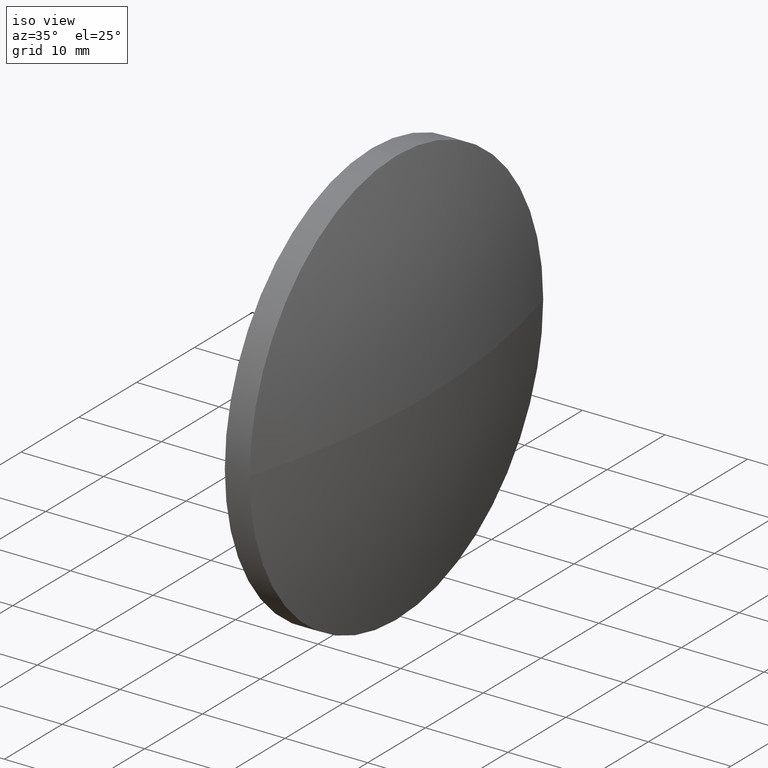
[diagram: clean part render]
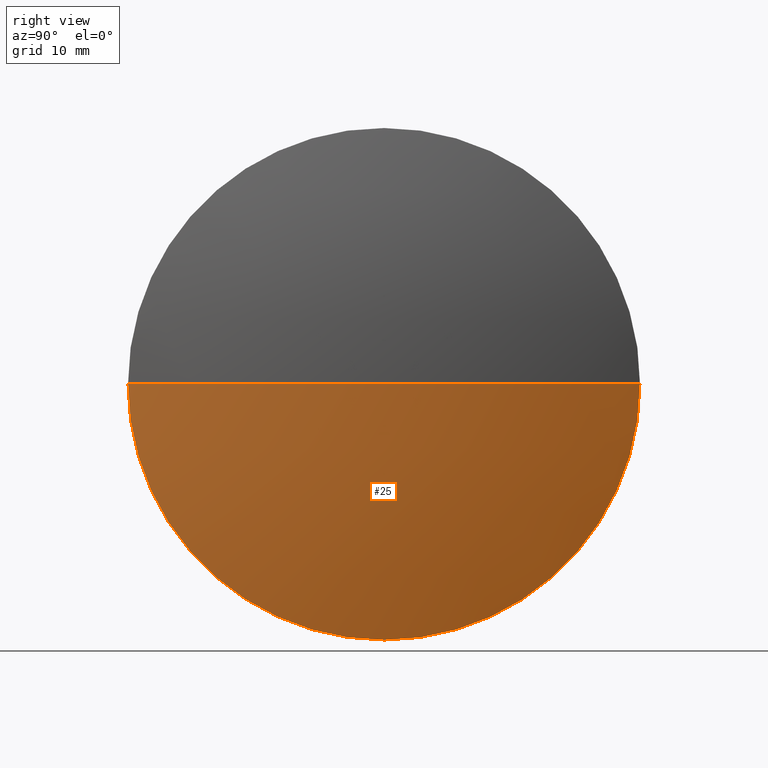
[diagram: tour spotlight — one face highlighted and labeled with its STEP entity id]
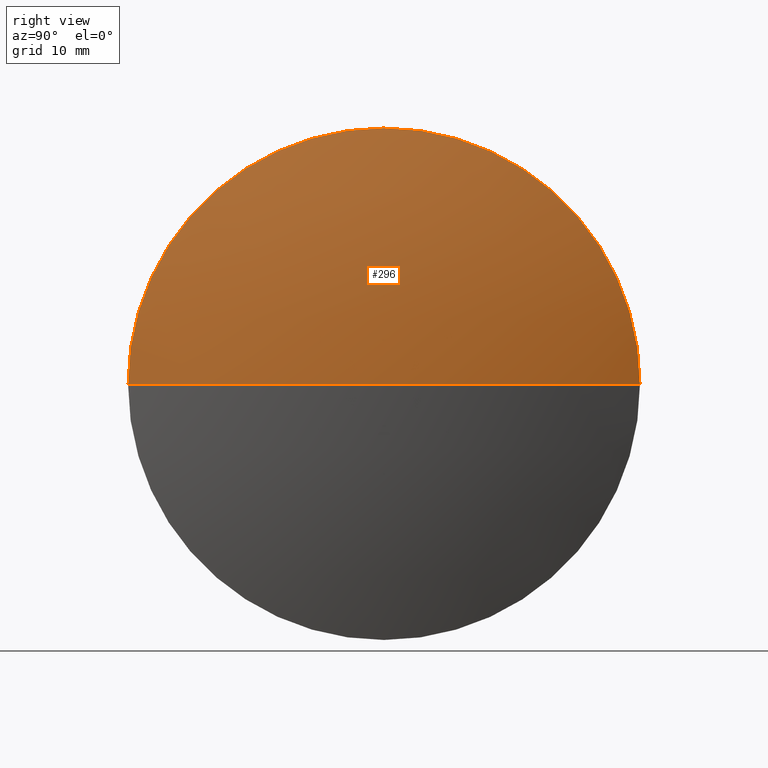
[diagram: tour spotlight — one face highlighted and labeled with its STEP entity id]
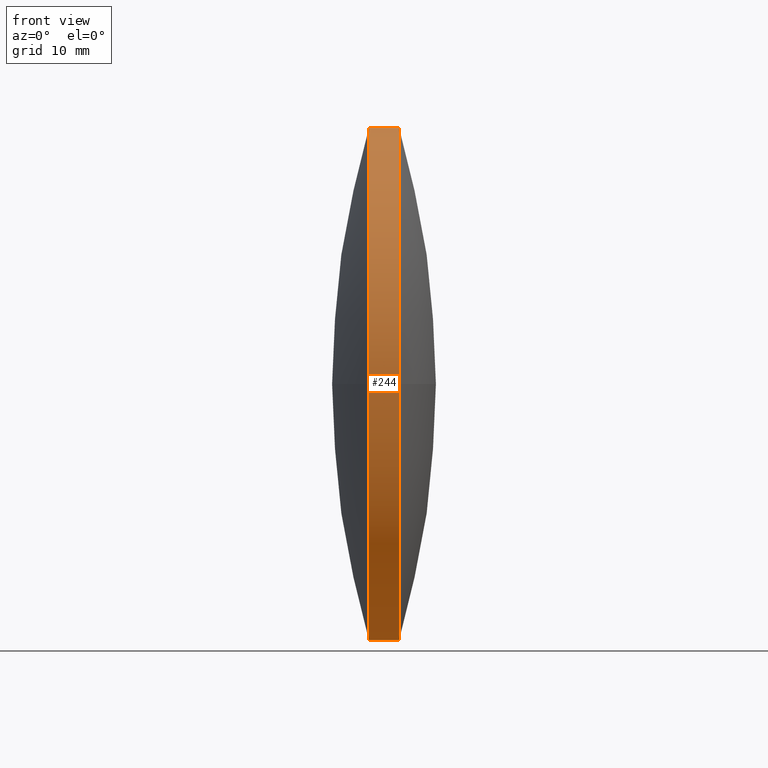
[diagram: tour spotlight — one face highlighted and labeled with its STEP entity id]
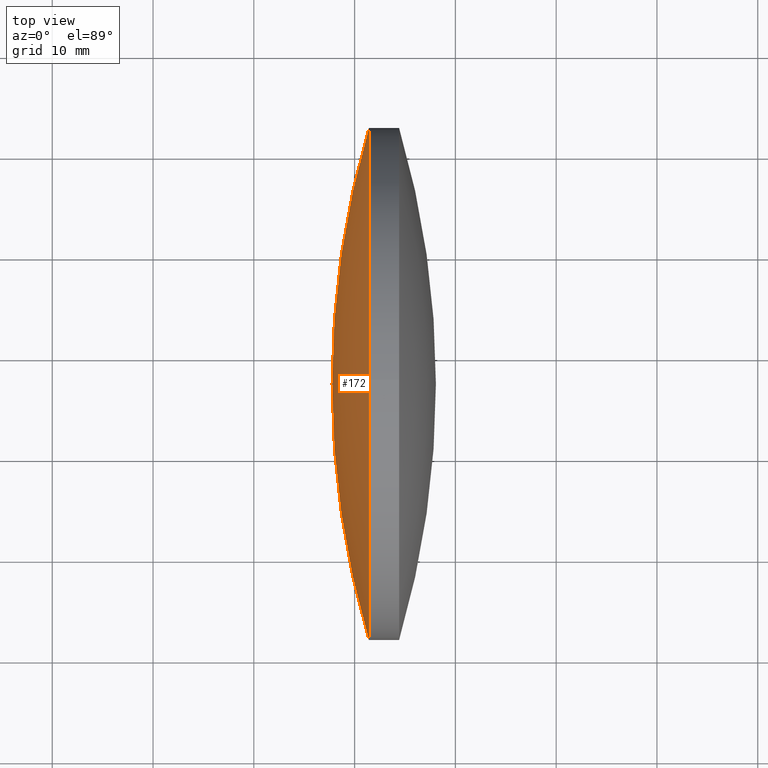
[diagram: tour spotlight — one face highlighted and labeled with its STEP entity id]
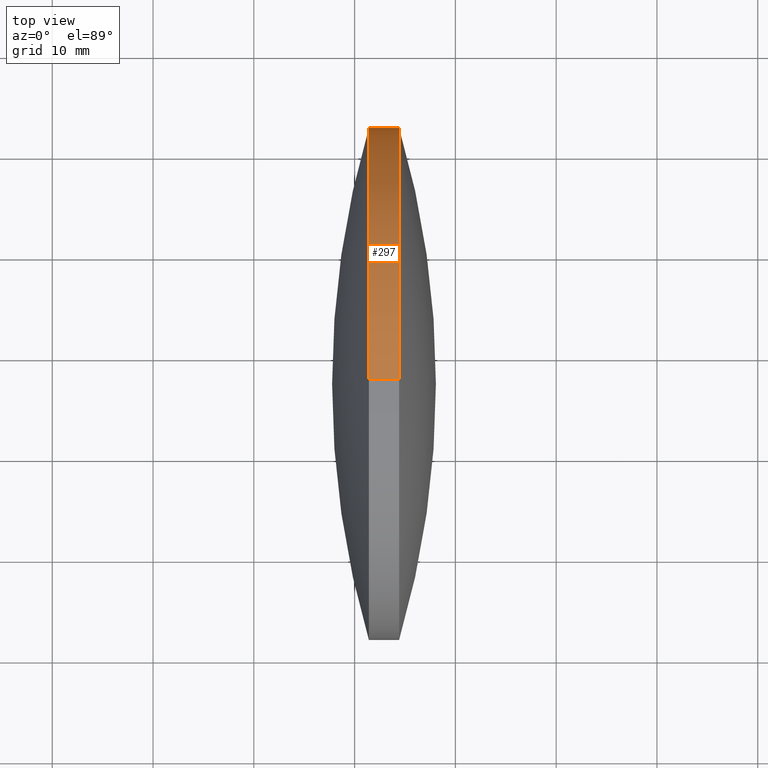
[diagram: tour spotlight — one face highlighted and labeled with its STEP entity id]
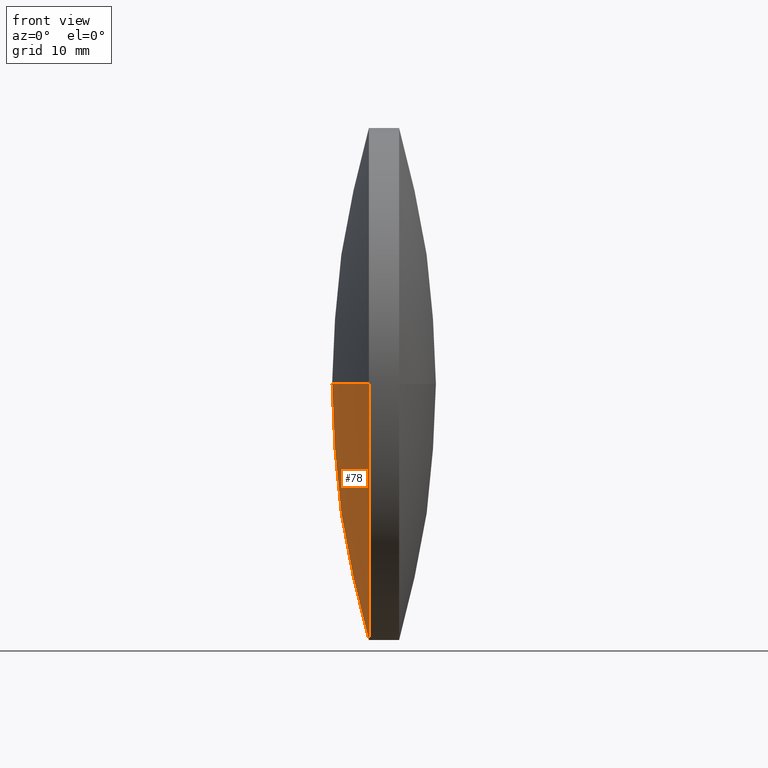
[diagram: tour spotlight — one face highlighted and labeled with its STEP entity id]
A machine part: a face-by-face anatomy tour. The part has 6 B-rep faces; the first image is the clean iso view, then the 6 largest visible faces are spotlighted one at a time (largest first), each with its STEP entity span.

Face 1 — right view, entity #25. In plain terms, the highlighted spherical surface has radius 90.2027 mm.
Definition (entity closure, byte-faithful):
#2 = ORIENTED_EDGE ( 'NONE', *, *, #204, .F. ) ;
#7 = DIRECTION ( 'NONE',  ( 0.0000000000000000000, 1.000000000000000000, 1.224646799147353200E-016 ) ) ;
#8 = CARTESIAN_POINT ( 'NONE',  ( 87.86368668460100700, 97.23222604636862300, 0.0000000000000000000 ) ) ;
#10 = VERTEX_POINT ( 'NONE', #32 ) ;
#11 = DIRECTION ( 'NONE',  ( 1.000000000000000000, 0.0000000000000000000, 0.0000000000000000000 ) ) ;
#12 = AXIS2_PLACEMENT_3D ( 'NONE', #8, #211, #11 ) ;
#13 = CARTESIAN_POINT ( 'NONE',  ( 174.4163664064679700, 122.6322260463691000, 0.0000000000000000000 ) ) ;
#14 = CARTESIAN_POINT ( 'NONE',  ( 174.4163664064679400, 97.23222604636956100, 0.0000000000000000000 ) ) ;
#25 = ADVANCED_FACE ( 'NONE', ( #210 ), #47, .T. ) ;
#30 = DIRECTION ( 'NONE',  ( 0.0000000000000000000, 1.000000000000000000, 0.0000000000000000000 ) ) ;
#32 = CARTESIAN_POINT ( 'NONE',  ( 174.4163664064679400, 97.23222604636956100, -25.39999999999999100 ) ) ;
#47 = SPHERICAL_SURFACE ( 'NONE', #179, 90.20269600758102500 ) ;
#72 = CARTESIAN_POINT ( 'NONE',  ( 174.4163664064679400, 97.23222604636956100, 0.0000000000000000000 ) ) ;
#87 = DIRECTION ( 'NONE',  ( -0.0000000000000000000, 0.0000000000000000000, -1.000000000000000000 ) ) ;
#105 = DIRECTION ( 'NONE',  ( 0.0000000000000000000, 0.0000000000000000000, 1.000000000000000000 ) ) ;
#109 = ORIENTED_EDGE ( 'NONE', *, *, #268, .F. ) ;
#117 = CIRCLE ( 'NONE', #159, 25.39999999999999100 ) ;
#118 = AXIS2_PLACEMENT_3D ( 'NONE', #72, #260, #105 ) ;
#127 = CARTESIAN_POINT ( 'NONE',  ( 178.0663826921820600, 97.23222604636862300, 0.0000000000000000000 ) ) ;
#134 = ORIENTED_EDGE ( 'NONE', *, *, #292, .F. ) ;
#142 = VERTEX_POINT ( 'NONE', #182 ) ;
#148 = VERTEX_POINT ( 'NONE', #13 ) ;
#150 = CIRCLE ( 'NONE', #12, 90.20269600758103900 ) ;
#159 = AXIS2_PLACEMENT_3D ( 'NONE', #14, #214, #336 ) ;
#177 = EDGE_LOOP ( 'NONE', ( #2, #237, #109, #134 ) ) ;
#179 = AXIS2_PLACEMENT_3D ( 'NONE', #247, #87, #30 ) ;
#182 = CARTESIAN_POINT ( 'NONE',  ( 174.4163664064679700, 71.83222604636908700, -3.110602869834220900E-015 ) ) ;
#187 = CIRCLE ( 'NONE', #118, 25.39999999999999100 ) ;
#204 = EDGE_CURVE ( 'NONE', #266, #148, #150, .T. ) ;
#208 = EDGE_CURVE ( 'NONE', #266, #142, #258, .T. ) ;
#210 = FACE_OUTER_BOUND ( 'NONE', #177, .T. ) ;
#211 = DIRECTION ( 'NONE',  ( -0.0000000000000000000, 0.0000000000000000000, 1.000000000000000000 ) ) ;
#214 = DIRECTION ( 'NONE',  ( -1.000000000000000000, -0.0000000000000000000, -0.0000000000000000000 ) ) ;
#237 = ORIENTED_EDGE ( 'NONE', *, *, #208, .T. ) ;
#247 = CARTESIAN_POINT ( 'NONE',  ( 87.86368668460100700, 97.23222604636862300, 0.0000000000000000000 ) ) ;
#257 = DIRECTION ( 'NONE',  ( 0.0000000000000000000, 1.224646799147353200E-016, -1.000000000000000000 ) ) ;
#258 = CIRCLE ( 'NONE', #303, 90.20269600758102500 ) ;
#260 = DIRECTION ( 'NONE',  ( -1.000000000000000000, -0.0000000000000000000, -0.0000000000000000000 ) ) ;
#266 = VERTEX_POINT ( 'NONE', #127 ) ;
#268 = EDGE_CURVE ( 'NONE', #10, #142, #117, .T. ) ;
#281 = CARTESIAN_POINT ( 'NONE',  ( 87.86368668460100700, 97.23222604636862300, 0.0000000000000000000 ) ) ;
#292 = EDGE_CURVE ( 'NONE', #148, #10, #187, .T. ) ;
#303 = AXIS2_PLACEMENT_3D ( 'NONE', #281, #257, #7 ) ;
#336 = DIRECTION ( 'NONE',  ( 0.0000000000000000000, 0.0000000000000000000, 1.000000000000000000 ) ) ;

Face 2 — right view, entity #296. In plain terms, the highlighted spherical surface has radius 90.2027 mm.
Definition (entity closure, byte-faithful):
#1 = EDGE_CURVE ( 'NONE', #173, #148, #34, .T. ) ;
#7 = DIRECTION ( 'NONE',  ( 0.0000000000000000000, 1.000000000000000000, 1.224646799147353200E-016 ) ) ;
#8 = CARTESIAN_POINT ( 'NONE',  ( 87.86368668460100700, 97.23222604636862300, 0.0000000000000000000 ) ) ;
#11 = DIRECTION ( 'NONE',  ( 1.000000000000000000, 0.0000000000000000000, 0.0000000000000000000 ) ) ;
#12 = AXIS2_PLACEMENT_3D ( 'NONE', #8, #211, #11 ) ;
#13 = CARTESIAN_POINT ( 'NONE',  ( 174.4163664064679700, 122.6322260463691000, 0.0000000000000000000 ) ) ;
#34 = CIRCLE ( 'NONE', #112, 25.39999999999999100 ) ;
#36 = ORIENTED_EDGE ( 'NONE', *, *, #1, .F. ) ;
#92 = CARTESIAN_POINT ( 'NONE',  ( 174.4163664064679400, 97.23222604636956100, 25.39999999999999100 ) ) ;
#102 = ORIENTED_EDGE ( 'NONE', *, *, #208, .F. ) ;
#103 = EDGE_CURVE ( 'NONE', #142, #173, #202, .T. ) ;
#112 = AXIS2_PLACEMENT_3D ( 'NONE', #178, #275, #120 ) ;
#114 = ORIENTED_EDGE ( 'NONE', *, *, #204, .T. ) ;
#120 = DIRECTION ( 'NONE',  ( 0.0000000000000000000, 0.0000000000000000000, 1.000000000000000000 ) ) ;
#126 = AXIS2_PLACEMENT_3D ( 'NONE', #255, #306, #330 ) ;
#127 = CARTESIAN_POINT ( 'NONE',  ( 178.0663826921820600, 97.23222604636862300, 0.0000000000000000000 ) ) ;
#128 = FACE_OUTER_BOUND ( 'NONE', #298, .T. ) ;
#137 = DIRECTION ( 'NONE',  ( 0.0000000000000000000, 1.000000000000000000, 0.0000000000000000000 ) ) ;
#139 = DIRECTION ( 'NONE',  ( -0.0000000000000000000, 0.0000000000000000000, -1.000000000000000000 ) ) ;
#142 = VERTEX_POINT ( 'NONE', #182 ) ;
#148 = VERTEX_POINT ( 'NONE', #13 ) ;
#150 = CIRCLE ( 'NONE', #12, 90.20269600758103900 ) ;
#173 = VERTEX_POINT ( 'NONE', #92 ) ;
#178 = CARTESIAN_POINT ( 'NONE',  ( 174.4163664064679400, 97.23222604636956100, 0.0000000000000000000 ) ) ;
#182 = CARTESIAN_POINT ( 'NONE',  ( 174.4163664064679700, 71.83222604636908700, -3.110602869834220900E-015 ) ) ;
#202 = CIRCLE ( 'NONE', #126, 25.39999999999999100 ) ;
#204 = EDGE_CURVE ( 'NONE', #266, #148, #150, .T. ) ;
#208 = EDGE_CURVE ( 'NONE', #266, #142, #258, .T. ) ;
#211 = DIRECTION ( 'NONE',  ( -0.0000000000000000000, 0.0000000000000000000, 1.000000000000000000 ) ) ;
#240 = ORIENTED_EDGE ( 'NONE', *, *, #103, .F. ) ;
#255 = CARTESIAN_POINT ( 'NONE',  ( 174.4163664064679400, 97.23222604636956100, 0.0000000000000000000 ) ) ;
#257 = DIRECTION ( 'NONE',  ( 0.0000000000000000000, 1.224646799147353200E-016, -1.000000000000000000 ) ) ;
#258 = CIRCLE ( 'NONE', #303, 90.20269600758102500 ) ;
#266 = VERTEX_POINT ( 'NONE', #127 ) ;
#275 = DIRECTION ( 'NONE',  ( -1.000000000000000000, -0.0000000000000000000, -0.0000000000000000000 ) ) ;
#281 = CARTESIAN_POINT ( 'NONE',  ( 87.86368668460100700, 97.23222604636862300, 0.0000000000000000000 ) ) ;
#296 = ADVANCED_FACE ( 'NONE', ( #128 ), #300, .T. ) ;
#298 = EDGE_LOOP ( 'NONE', ( #102, #114, #36, #240 ) ) ;
#300 = SPHERICAL_SURFACE ( 'NONE', #334, 90.20269600758102500 ) ;
#303 = AXIS2_PLACEMENT_3D ( 'NONE', #281, #257, #7 ) ;
#306 = DIRECTION ( 'NONE',  ( -1.000000000000000000, -0.0000000000000000000, -0.0000000000000000000 ) ) ;
#309 = CARTESIAN_POINT ( 'NONE',  ( 87.86368668460100700, 97.23222604636862300, 0.0000000000000000000 ) ) ;
#330 = DIRECTION ( 'NONE',  ( 0.0000000000000000000, 0.0000000000000000000, 1.000000000000000000 ) ) ;
#334 = AXIS2_PLACEMENT_3D ( 'NONE', #309, #139, #137 ) ;

Face 3 — front view, entity #244. In plain terms, the highlighted cylindrical surface (partial cylindrical patch) has radius 25.4 mm, axis along (-1, -0, -0).
Definition (entity closure, byte-faithful):
#10 = VERTEX_POINT ( 'NONE', #32 ) ;
#14 = CARTESIAN_POINT ( 'NONE',  ( 174.4163664064679400, 97.23222604636956100, 0.0000000000000000000 ) ) ;
#15 = EDGE_CURVE ( 'NONE', #173, #83, #143, .T. ) ;
#22 = ORIENTED_EDGE ( 'NONE', *, *, #45, .F. ) ;
#29 = VERTEX_POINT ( 'NONE', #301 ) ;
#32 = CARTESIAN_POINT ( 'NONE',  ( 174.4163664064679400, 97.23222604636956100, -25.39999999999999100 ) ) ;
#35 = DIRECTION ( 'NONE',  ( 0.0000000000000000000, 0.0000000000000000000, 1.000000000000000000 ) ) ;
#45 = EDGE_CURVE ( 'NONE', #338, #29, #59, .T. ) ;
#56 = DIRECTION ( 'NONE',  ( -1.000000000000000000, -0.0000000000000000000, -0.0000000000000000000 ) ) ;
#59 = CIRCLE ( 'NONE', #283, 25.39999999999999100 ) ;
#62 = CARTESIAN_POINT ( 'NONE',  ( 171.4164086921822200, 97.23222604636956100, 25.39999999999999100 ) ) ;
#69 = DIRECTION ( 'NONE',  ( 0.0000000000000000000, 0.0000000000000000000, 1.000000000000000000 ) ) ;
#82 = EDGE_CURVE ( 'NONE', #10, #338, #280, .T. ) ;
#83 = VERTEX_POINT ( 'NONE', #62 ) ;
#90 = DIRECTION ( 'NONE',  ( 0.0000000000000000000, 0.0000000000000000000, 1.000000000000000000 ) ) ;
#92 = CARTESIAN_POINT ( 'NONE',  ( 174.4163664064679400, 97.23222604636956100, 25.39999999999999100 ) ) ;
#97 = VECTOR ( 'NONE', #200, 1000.000000000000000 ) ;
#99 = CARTESIAN_POINT ( 'NONE',  ( 165.7441079421506900, 97.23222604636956100, 0.0000000000000000000 ) ) ;
#103 = EDGE_CURVE ( 'NONE', #142, #173, #202, .T. ) ;
#117 = CIRCLE ( 'NONE', #159, 25.39999999999999100 ) ;
#122 = CARTESIAN_POINT ( 'NONE',  ( 165.7441079421506900, 97.23222604636956100, 25.39999999999999100 ) ) ;
#126 = AXIS2_PLACEMENT_3D ( 'NONE', #255, #306, #330 ) ;
#130 = DIRECTION ( 'NONE',  ( -1.000000000000000000, -0.0000000000000000000, -0.0000000000000000000 ) ) ;
#142 = VERTEX_POINT ( 'NONE', #182 ) ;
#143 = LINE ( 'NONE', #122, #97 ) ;
#159 = AXIS2_PLACEMENT_3D ( 'NONE', #14, #214, #336 ) ;
#173 = VERTEX_POINT ( 'NONE', #92 ) ;
#182 = CARTESIAN_POINT ( 'NONE',  ( 174.4163664064679700, 71.83222604636908700, -3.110602869834220900E-015 ) ) ;
#190 = AXIS2_PLACEMENT_3D ( 'NONE', #233, #207, #69 ) ;
#193 = VECTOR ( 'NONE', #311, 1000.000000000000000 ) ;
#200 = DIRECTION ( 'NONE',  ( -1.000000000000000000, -0.0000000000000000000, -0.0000000000000000000 ) ) ;
#202 = CIRCLE ( 'NONE', #126, 25.39999999999999100 ) ;
#207 = DIRECTION ( 'NONE',  ( -1.000000000000000000, -0.0000000000000000000, -0.0000000000000000000 ) ) ;
#214 = DIRECTION ( 'NONE',  ( -1.000000000000000000, -0.0000000000000000000, -0.0000000000000000000 ) ) ;
#215 = EDGE_CURVE ( 'NONE', #29, #83, #341, .T. ) ;
#225 = CARTESIAN_POINT ( 'NONE',  ( 171.4164086921822200, 97.23222604636956100, 0.0000000000000000000 ) ) ;
#228 = CARTESIAN_POINT ( 'NONE',  ( 165.7441079421506900, 97.23222604636956100, -25.39999999999999100 ) ) ;
#232 = CYLINDRICAL_SURFACE ( 'NONE', #319, 25.39999999999999100 ) ;
#233 = CARTESIAN_POINT ( 'NONE',  ( 171.4164086921822200, 97.23222604636956100, 0.0000000000000000000 ) ) ;
#235 = ORIENTED_EDGE ( 'NONE', *, *, #82, .F. ) ;
#242 = EDGE_LOOP ( 'NONE', ( #235, #314, #307, #332, #290, #22 ) ) ;
#244 = ADVANCED_FACE ( 'NONE', ( #325 ), #232, .T. ) ;
#255 = CARTESIAN_POINT ( 'NONE',  ( 174.4163664064679400, 97.23222604636956100, 0.0000000000000000000 ) ) ;
#268 = EDGE_CURVE ( 'NONE', #10, #142, #117, .T. ) ;
#280 = LINE ( 'NONE', #228, #193 ) ;
#283 = AXIS2_PLACEMENT_3D ( 'NONE', #225, #56, #90 ) ;
#290 = ORIENTED_EDGE ( 'NONE', *, *, #215, .F. ) ;
#301 = CARTESIAN_POINT ( 'NONE',  ( 171.4164086921822200, 71.83222604636959800, -3.110602869834273300E-015 ) ) ;
#306 = DIRECTION ( 'NONE',  ( -1.000000000000000000, -0.0000000000000000000, -0.0000000000000000000 ) ) ;
#307 = ORIENTED_EDGE ( 'NONE', *, *, #103, .T. ) ;
#311 = DIRECTION ( 'NONE',  ( -1.000000000000000000, -0.0000000000000000000, -0.0000000000000000000 ) ) ;
#312 = CARTESIAN_POINT ( 'NONE',  ( 171.4164086921822200, 97.23222604636956100, -25.39999999999999100 ) ) ;
#314 = ORIENTED_EDGE ( 'NONE', *, *, #268, .T. ) ;
#319 = AXIS2_PLACEMENT_3D ( 'NONE', #99, #130, #35 ) ;
#325 = FACE_OUTER_BOUND ( 'NONE', #242, .T. ) ;
#330 = DIRECTION ( 'NONE',  ( 0.0000000000000000000, 0.0000000000000000000, 1.000000000000000000 ) ) ;
#332 = ORIENTED_EDGE ( 'NONE', *, *, #15, .T. ) ;
#336 = DIRECTION ( 'NONE',  ( 0.0000000000000000000, 0.0000000000000000000, 1.000000000000000000 ) ) ;
#338 = VERTEX_POINT ( 'NONE', #312 ) ;
#341 = CIRCLE ( 'NONE', #190, 25.39999999999999100 ) ;

Face 4 — top view, entity #172. In plain terms, the highlighted spherical surface has radius 90.2027 mm.
Definition (entity closure, byte-faithful):
#4 = ORIENTED_EDGE ( 'NONE', *, *, #215, .T. ) ;
#17 = FACE_OUTER_BOUND ( 'NONE', #57, .T. ) ;
#29 = VERTEX_POINT ( 'NONE', #301 ) ;
#40 = CARTESIAN_POINT ( 'NONE',  ( 167.7663924064679600, 97.23222604636956100, 0.0000000000000000000 ) ) ;
#57 = EDGE_LOOP ( 'NONE', ( #74, #4, #175, #216 ) ) ;
#60 = EDGE_CURVE ( 'NONE', #106, #165, #170, .T. ) ;
#62 = CARTESIAN_POINT ( 'NONE',  ( 171.4164086921822200, 97.23222604636956100, 25.39999999999999100 ) ) ;
#63 = DIRECTION ( 'NONE',  ( 0.0000000000000000000, 1.000000000000000000, 0.0000000000000000000 ) ) ;
#64 = DIRECTION ( 'NONE',  ( 0.0000000000000000000, 1.224646799147353200E-016, -1.000000000000000000 ) ) ;
#69 = DIRECTION ( 'NONE',  ( 0.0000000000000000000, 0.0000000000000000000, 1.000000000000000000 ) ) ;
#74 = ORIENTED_EDGE ( 'NONE', *, *, #254, .F. ) ;
#79 = AXIS2_PLACEMENT_3D ( 'NONE', #304, #154, #305 ) ;
#83 = VERTEX_POINT ( 'NONE', #62 ) ;
#100 = DIRECTION ( 'NONE',  ( -1.000000000000000000, -0.0000000000000000000, -0.0000000000000000000 ) ) ;
#106 = VERTEX_POINT ( 'NONE', #151 ) ;
#123 = AXIS2_PLACEMENT_3D ( 'NONE', #156, #64, #164 ) ;
#132 = CARTESIAN_POINT ( 'NONE',  ( 171.4164086921822200, 97.23222604636956100, 0.0000000000000000000 ) ) ;
#151 = CARTESIAN_POINT ( 'NONE',  ( 171.4164086921822200, 122.6322260463695200, 0.0000000000000000000 ) ) ;
#152 = EDGE_CURVE ( 'NONE', #83, #106, #217, .T. ) ;
#154 = DIRECTION ( 'NONE',  ( -0.0000000000000000000, 0.0000000000000000000, 1.000000000000000000 ) ) ;
#156 = CARTESIAN_POINT ( 'NONE',  ( 257.9690884140448500, 97.23222604636956100, 0.0000000000000000000 ) ) ;
#161 = DIRECTION ( 'NONE',  ( 0.0000000000000000000, 0.0000000000000000000, 1.000000000000000000 ) ) ;
#164 = DIRECTION ( 'NONE',  ( 0.0000000000000000000, 1.000000000000000000, 1.224646799147353500E-016 ) ) ;
#165 = VERTEX_POINT ( 'NONE', #40 ) ;
#167 = CIRCLE ( 'NONE', #123, 90.20269600757689000 ) ;
#170 = CIRCLE ( 'NONE', #79, 90.20269600757690400 ) ;
#172 = ADVANCED_FACE ( 'NONE', ( #17 ), #253, .T. ) ;
#175 = ORIENTED_EDGE ( 'NONE', *, *, #152, .T. ) ;
#184 = DIRECTION ( 'NONE',  ( -0.0000000000000000000, 0.0000000000000000000, -1.000000000000000000 ) ) ;
#190 = AXIS2_PLACEMENT_3D ( 'NONE', #233, #207, #69 ) ;
#207 = DIRECTION ( 'NONE',  ( -1.000000000000000000, -0.0000000000000000000, -0.0000000000000000000 ) ) ;
#215 = EDGE_CURVE ( 'NONE', #29, #83, #341, .T. ) ;
#216 = ORIENTED_EDGE ( 'NONE', *, *, #60, .T. ) ;
#217 = CIRCLE ( 'NONE', #310, 25.39999999999999100 ) ;
#233 = CARTESIAN_POINT ( 'NONE',  ( 171.4164086921822200, 97.23222604636956100, 0.0000000000000000000 ) ) ;
#251 = AXIS2_PLACEMENT_3D ( 'NONE', #333, #184, #63 ) ;
#253 = SPHERICAL_SURFACE ( 'NONE', #251, 90.20269600757690400 ) ;
#254 = EDGE_CURVE ( 'NONE', #29, #165, #167, .T. ) ;
#301 = CARTESIAN_POINT ( 'NONE',  ( 171.4164086921822200, 71.83222604636959800, -3.110602869834273300E-015 ) ) ;
#304 = CARTESIAN_POINT ( 'NONE',  ( 257.9690884140448500, 97.23222604636956100, 0.0000000000000000000 ) ) ;
#305 = DIRECTION ( 'NONE',  ( 1.000000000000000000, 0.0000000000000000000, 0.0000000000000000000 ) ) ;
#310 = AXIS2_PLACEMENT_3D ( 'NONE', #132, #100, #161 ) ;
#333 = CARTESIAN_POINT ( 'NONE',  ( 257.9690884140448500, 97.23222604636956100, 0.0000000000000000000 ) ) ;
#341 = CIRCLE ( 'NONE', #190, 25.39999999999999100 ) ;

Face 5 — top view, entity #297. In plain terms, the highlighted cylindrical surface (partial cylindrical patch) has radius 25.4 mm, axis along (-1, -0, -0).
Definition (entity closure, byte-faithful):
#1 = EDGE_CURVE ( 'NONE', #173, #148, #34, .T. ) ;
#10 = VERTEX_POINT ( 'NONE', #32 ) ;
#13 = CARTESIAN_POINT ( 'NONE',  ( 174.4163664064679700, 122.6322260463691000, 0.0000000000000000000 ) ) ;
#15 = EDGE_CURVE ( 'NONE', #173, #83, #143, .T. ) ;
#32 = CARTESIAN_POINT ( 'NONE',  ( 174.4163664064679400, 97.23222604636956100, -25.39999999999999100 ) ) ;
#34 = CIRCLE ( 'NONE', #112, 25.39999999999999100 ) ;
#41 = CARTESIAN_POINT ( 'NONE',  ( 171.4164086921822200, 97.23222604636956100, 0.0000000000000000000 ) ) ;
#62 = CARTESIAN_POINT ( 'NONE',  ( 171.4164086921822200, 97.23222604636956100, 25.39999999999999100 ) ) ;
#67 = ORIENTED_EDGE ( 'NONE', *, *, #15, .F. ) ;
#72 = CARTESIAN_POINT ( 'NONE',  ( 174.4163664064679400, 97.23222604636956100, 0.0000000000000000000 ) ) ;
#81 = EDGE_CURVE ( 'NONE', #106, #338, #317, .T. ) ;
#82 = EDGE_CURVE ( 'NONE', #10, #338, #280, .T. ) ;
#83 = VERTEX_POINT ( 'NONE', #62 ) ;
#86 = FACE_OUTER_BOUND ( 'NONE', #272, .T. ) ;
#92 = CARTESIAN_POINT ( 'NONE',  ( 174.4163664064679400, 97.23222604636956100, 25.39999999999999100 ) ) ;
#97 = VECTOR ( 'NONE', #200, 1000.000000000000000 ) ;
#100 = DIRECTION ( 'NONE',  ( -1.000000000000000000, -0.0000000000000000000, -0.0000000000000000000 ) ) ;
#104 = CARTESIAN_POINT ( 'NONE',  ( 165.7441079421506900, 97.23222604636956100, 0.0000000000000000000 ) ) ;
#105 = DIRECTION ( 'NONE',  ( 0.0000000000000000000, 0.0000000000000000000, 1.000000000000000000 ) ) ;
#106 = VERTEX_POINT ( 'NONE', #151 ) ;
#112 = AXIS2_PLACEMENT_3D ( 'NONE', #178, #275, #120 ) ;
#118 = AXIS2_PLACEMENT_3D ( 'NONE', #72, #260, #105 ) ;
#120 = DIRECTION ( 'NONE',  ( 0.0000000000000000000, 0.0000000000000000000, 1.000000000000000000 ) ) ;
#122 = CARTESIAN_POINT ( 'NONE',  ( 165.7441079421506900, 97.23222604636956100, 25.39999999999999100 ) ) ;
#132 = CARTESIAN_POINT ( 'NONE',  ( 171.4164086921822200, 97.23222604636956100, 0.0000000000000000000 ) ) ;
#136 = DIRECTION ( 'NONE',  ( 0.0000000000000000000, 0.0000000000000000000, 1.000000000000000000 ) ) ;
#143 = LINE ( 'NONE', #122, #97 ) ;
#148 = VERTEX_POINT ( 'NONE', #13 ) ;
#151 = CARTESIAN_POINT ( 'NONE',  ( 171.4164086921822200, 122.6322260463695200, 0.0000000000000000000 ) ) ;
#152 = EDGE_CURVE ( 'NONE', #83, #106, #217, .T. ) ;
#160 = ORIENTED_EDGE ( 'NONE', *, *, #292, .T. ) ;
#161 = DIRECTION ( 'NONE',  ( 0.0000000000000000000, 0.0000000000000000000, 1.000000000000000000 ) ) ;
#173 = VERTEX_POINT ( 'NONE', #92 ) ;
#178 = CARTESIAN_POINT ( 'NONE',  ( 174.4163664064679400, 97.23222604636956100, 0.0000000000000000000 ) ) ;
#187 = CIRCLE ( 'NONE', #118, 25.39999999999999100 ) ;
#193 = VECTOR ( 'NONE', #311, 1000.000000000000000 ) ;
#198 = AXIS2_PLACEMENT_3D ( 'NONE', #104, #315, #265 ) ;
#199 = ORIENTED_EDGE ( 'NONE', *, *, #81, .F. ) ;
#200 = DIRECTION ( 'NONE',  ( -1.000000000000000000, -0.0000000000000000000, -0.0000000000000000000 ) ) ;
#217 = CIRCLE ( 'NONE', #310, 25.39999999999999100 ) ;
#228 = CARTESIAN_POINT ( 'NONE',  ( 165.7441079421506900, 97.23222604636956100, -25.39999999999999100 ) ) ;
#229 = DIRECTION ( 'NONE',  ( -1.000000000000000000, -0.0000000000000000000, -0.0000000000000000000 ) ) ;
#230 = ORIENTED_EDGE ( 'NONE', *, *, #152, .F. ) ;
#249 = CYLINDRICAL_SURFACE ( 'NONE', #198, 25.39999999999999100 ) ;
#260 = DIRECTION ( 'NONE',  ( -1.000000000000000000, -0.0000000000000000000, -0.0000000000000000000 ) ) ;
#265 = DIRECTION ( 'NONE',  ( 0.0000000000000000000, 0.0000000000000000000, 1.000000000000000000 ) ) ;
#272 = EDGE_LOOP ( 'NONE', ( #160, #295, #199, #230, #67, #278 ) ) ;
#275 = DIRECTION ( 'NONE',  ( -1.000000000000000000, -0.0000000000000000000, -0.0000000000000000000 ) ) ;
#278 = ORIENTED_EDGE ( 'NONE', *, *, #1, .T. ) ;
#280 = LINE ( 'NONE', #228, #193 ) ;
#292 = EDGE_CURVE ( 'NONE', #148, #10, #187, .T. ) ;
#293 = AXIS2_PLACEMENT_3D ( 'NONE', #41, #229, #136 ) ;
#295 = ORIENTED_EDGE ( 'NONE', *, *, #82, .T. ) ;
#297 = ADVANCED_FACE ( 'NONE', ( #86 ), #249, .T. ) ;
#310 = AXIS2_PLACEMENT_3D ( 'NONE', #132, #100, #161 ) ;
#311 = DIRECTION ( 'NONE',  ( -1.000000000000000000, -0.0000000000000000000, -0.0000000000000000000 ) ) ;
#312 = CARTESIAN_POINT ( 'NONE',  ( 171.4164086921822200, 97.23222604636956100, -25.39999999999999100 ) ) ;
#315 = DIRECTION ( 'NONE',  ( -1.000000000000000000, -0.0000000000000000000, -0.0000000000000000000 ) ) ;
#317 = CIRCLE ( 'NONE', #293, 25.39999999999999100 ) ;
#338 = VERTEX_POINT ( 'NONE', #312 ) ;

Face 6 — front view, entity #78. In plain terms, the highlighted spherical surface has radius 90.2027 mm.
Definition (entity closure, byte-faithful):
#29 = VERTEX_POINT ( 'NONE', #301 ) ;
#40 = CARTESIAN_POINT ( 'NONE',  ( 167.7663924064679600, 97.23222604636956100, 0.0000000000000000000 ) ) ;
#41 = CARTESIAN_POINT ( 'NONE',  ( 171.4164086921822200, 97.23222604636956100, 0.0000000000000000000 ) ) ;
#45 = EDGE_CURVE ( 'NONE', #338, #29, #59, .T. ) ;
#50 = ORIENTED_EDGE ( 'NONE', *, *, #81, .T. ) ;
#56 = DIRECTION ( 'NONE',  ( -1.000000000000000000, -0.0000000000000000000, -0.0000000000000000000 ) ) ;
#59 = CIRCLE ( 'NONE', #283, 25.39999999999999100 ) ;
#60 = EDGE_CURVE ( 'NONE', #106, #165, #170, .T. ) ;
#64 = DIRECTION ( 'NONE',  ( 0.0000000000000000000, 1.224646799147353200E-016, -1.000000000000000000 ) ) ;
#65 = ORIENTED_EDGE ( 'NONE', *, *, #254, .T. ) ;
#78 = ADVANCED_FACE ( 'NONE', ( #267 ), #322, .T. ) ;
#79 = AXIS2_PLACEMENT_3D ( 'NONE', #304, #154, #305 ) ;
#81 = EDGE_CURVE ( 'NONE', #106, #338, #317, .T. ) ;
#89 = DIRECTION ( 'NONE',  ( 0.0000000000000000000, 1.000000000000000000, 0.0000000000000000000 ) ) ;
#90 = DIRECTION ( 'NONE',  ( 0.0000000000000000000, 0.0000000000000000000, 1.000000000000000000 ) ) ;
#98 = AXIS2_PLACEMENT_3D ( 'NONE', #326, #250, #89 ) ;
#106 = VERTEX_POINT ( 'NONE', #151 ) ;
#123 = AXIS2_PLACEMENT_3D ( 'NONE', #156, #64, #164 ) ;
#136 = DIRECTION ( 'NONE',  ( 0.0000000000000000000, 0.0000000000000000000, 1.000000000000000000 ) ) ;
#151 = CARTESIAN_POINT ( 'NONE',  ( 171.4164086921822200, 122.6322260463695200, 0.0000000000000000000 ) ) ;
#154 = DIRECTION ( 'NONE',  ( -0.0000000000000000000, 0.0000000000000000000, 1.000000000000000000 ) ) ;
#156 = CARTESIAN_POINT ( 'NONE',  ( 257.9690884140448500, 97.23222604636956100, 0.0000000000000000000 ) ) ;
#157 = ORIENTED_EDGE ( 'NONE', *, *, #60, .F. ) ;
#164 = DIRECTION ( 'NONE',  ( 0.0000000000000000000, 1.000000000000000000, 1.224646799147353500E-016 ) ) ;
#165 = VERTEX_POINT ( 'NONE', #40 ) ;
#167 = CIRCLE ( 'NONE', #123, 90.20269600757689000 ) ;
#170 = CIRCLE ( 'NONE', #79, 90.20269600757690400 ) ;
#181 = ORIENTED_EDGE ( 'NONE', *, *, #45, .T. ) ;
#197 = EDGE_LOOP ( 'NONE', ( #50, #181, #65, #157 ) ) ;
#225 = CARTESIAN_POINT ( 'NONE',  ( 171.4164086921822200, 97.23222604636956100, 0.0000000000000000000 ) ) ;
#229 = DIRECTION ( 'NONE',  ( -1.000000000000000000, -0.0000000000000000000, -0.0000000000000000000 ) ) ;
#250 = DIRECTION ( 'NONE',  ( -0.0000000000000000000, 0.0000000000000000000, -1.000000000000000000 ) ) ;
#254 = EDGE_CURVE ( 'NONE', #29, #165, #167, .T. ) ;
#267 = FACE_OUTER_BOUND ( 'NONE', #197, .T. ) ;
#283 = AXIS2_PLACEMENT_3D ( 'NONE', #225, #56, #90 ) ;
#293 = AXIS2_PLACEMENT_3D ( 'NONE', #41, #229, #136 ) ;
#301 = CARTESIAN_POINT ( 'NONE',  ( 171.4164086921822200, 71.83222604636959800, -3.110602869834273300E-015 ) ) ;
#304 = CARTESIAN_POINT ( 'NONE',  ( 257.9690884140448500, 97.23222604636956100, 0.0000000000000000000 ) ) ;
#305 = DIRECTION ( 'NONE',  ( 1.000000000000000000, 0.0000000000000000000, 0.0000000000000000000 ) ) ;
#312 = CARTESIAN_POINT ( 'NONE',  ( 171.4164086921822200, 97.23222604636956100, -25.39999999999999100 ) ) ;
#317 = CIRCLE ( 'NONE', #293, 25.39999999999999100 ) ;
#322 = SPHERICAL_SURFACE ( 'NONE', #98, 90.20269600757690400 ) ;
#326 = CARTESIAN_POINT ( 'NONE',  ( 257.9690884140448500, 97.23222604636956100, 0.0000000000000000000 ) ) ;
#338 = VERTEX_POINT ( 'NONE', #312 ) ;